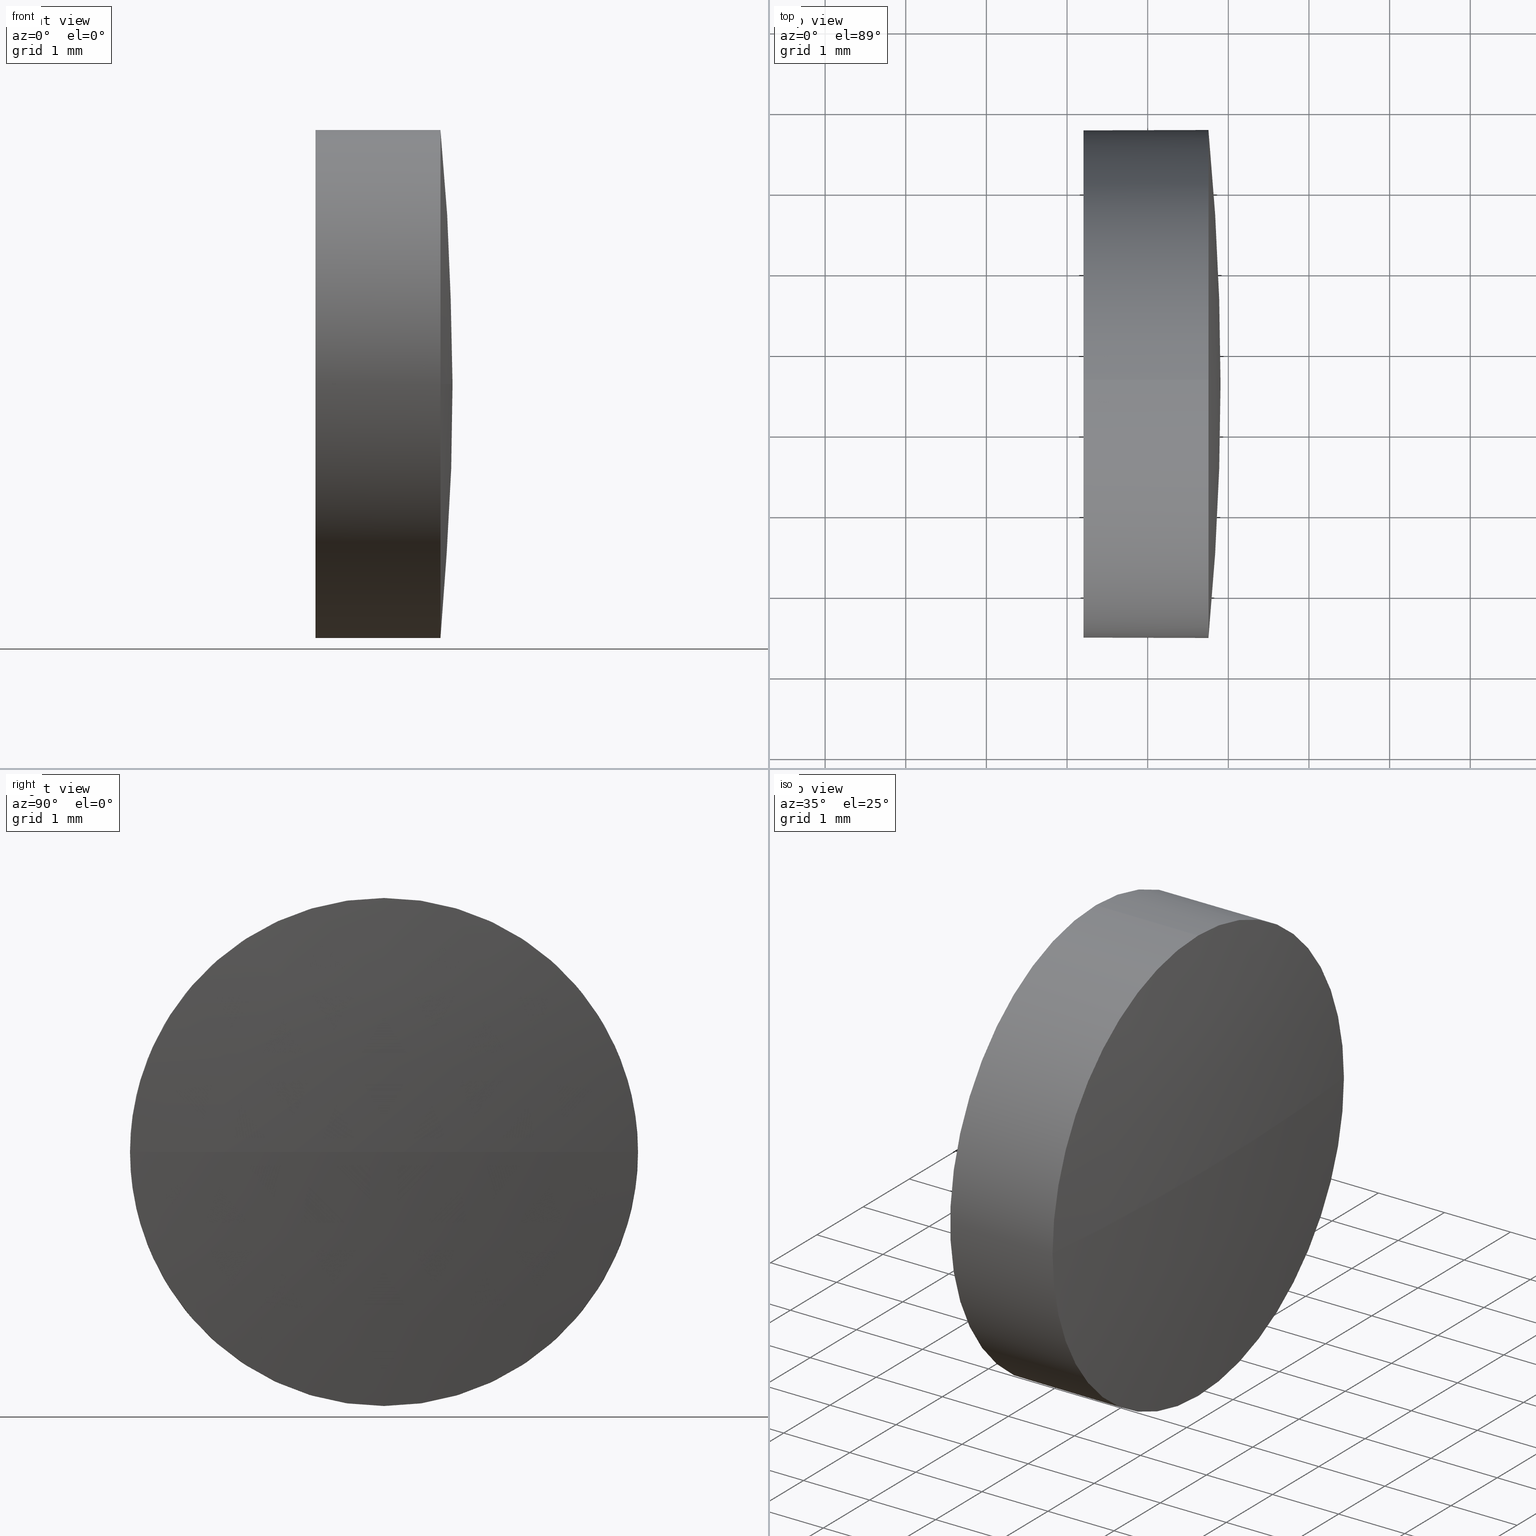
[diagram: canonical four-view strip — front | top / right | iso, engineering-drawing reading convention]
A machine part, canonical four-view strip (front | top / right | iso — engineering-drawing reading convention). The complete STEP part file that produces these views, byte-faithful:
ISO-10303-21;
HEADER;
FILE_DESCRIPTION (( 'STEP AP214' ),
    '1' );
FILE_NAME ('100185.STEP',
    '2019-05-21T05:32:03',
    ( '' ),
    ( '' ),
    'SwSTEP 2.0',
    'SolidWorks 2016',
    '' );
FILE_SCHEMA (( 'AUTOMOTIVE_DESIGN' ));
ENDSEC;

DATA;
#1 = AXIS2_PLACEMENT_3D ( 'NONE', #105, #165, #7 ) ;
#2 = DIRECTION ( 'NONE',  ( -0.0000000000000000000, 0.0000000000000000000, -1.000000000000000000 ) ) ;
#3 = LINE ( 'NONE', #32, #106 ) ;
#4 = CARTESIAN_POINT ( 'NONE',  ( 421.2035266146245400, 44.60173696061082200, -3.149999999999999900 ) ) ;
#5 = PRESENTATION_STYLE_ASSIGNMENT (( #139 ) ) ;
#6 = DIRECTION ( 'NONE',  ( 0.0000000000000000000, 0.0000000000000000000, 1.000000000000000000 ) ) ;
#7 = DIRECTION ( 'NONE',  ( 0.0000000000000000000, 1.000000000000000000, 1.224646799147353200E-016 ) ) ;
#8 = VERTEX_POINT ( 'NONE', #11 ) ;
#9 = ORIENTED_EDGE ( 'NONE', *, *, #123, .T. ) ;
#10 = EDGE_CURVE ( 'NONE', #87, #16, #42, .T. ) ;
#11 = CARTESIAN_POINT ( 'NONE',  ( 422.7535266146244900, 41.45173696061073100, -3.857637417314108000E-016 ) ) ;
#12 = DIRECTION ( 'NONE',  ( 0.0000000000000000000, 1.000000000000000000, 0.0000000000000000000 ) ) ;
#13 = MANIFOLD_SOLID_BREP ( '��ת2', #108 ) ;
#14 = FACE_OUTER_BOUND ( 'NONE', #90, .T. ) ;
#15 = VERTEX_POINT ( 'NONE', #177 ) ;
#16 = VERTEX_POINT ( 'NONE', #142 ) ;
#17 = AXIS2_PLACEMENT_3D ( 'NONE', #145, #31, #66 ) ;
#18 = DIRECTION ( 'NONE',  ( -1.000000000000000000, -0.0000000000000000000, -0.0000000000000000000 ) ) ;
#19 = FACE_OUTER_BOUND ( 'NONE', #52, .T. ) ;
#20 = ORIENTED_EDGE ( 'NONE', *, *, #140, .F. ) ;
#21 = CARTESIAN_POINT ( 'NONE',  ( 422.7535266146244900, 44.60173696061082200, 0.0000000000000000000 ) ) ;
#22 = CARTESIAN_POINT ( 'NONE',  ( 421.2035266146245400, 44.60173696061082200, 0.0000000000000000000 ) ) ;
#23 = AXIS2_PLACEMENT_3D ( 'NONE', #179, #47, #157 ) ;
#24 =( GEOMETRIC_REPRESENTATION_CONTEXT ( 3 ) GLOBAL_UNCERTAINTY_ASSIGNED_CONTEXT ( ( #45 ) ) GLOBAL_UNIT_ASSIGNED_CONTEXT ( ( #144, #35, #133 ) ) REPRESENTATION_CONTEXT ( 'NONE', 'WORKASPACE' ) );
#25 = ORIENTED_EDGE ( 'NONE', *, *, #103, .T. ) ;
#26 = ORIENTED_EDGE ( 'NONE', *, *, #10, .T. ) ;
#27 = AXIS2_PLACEMENT_3D ( 'NONE', #175, #80, #50 ) ;
#28 = CARTESIAN_POINT ( 'NONE',  ( 422.7535266146244900, 44.60173696061082200, -3.149999999999999900 ) ) ;
#29 = CIRCLE ( 'NONE', #127, 3.149999999999999900 ) ;
#30 = FILL_AREA_STYLE ('',( #81 ) ) ;
#31 = DIRECTION ( 'NONE',  ( 1.000000000000000000, 0.0000000000000000000, 0.0000000000000000000 ) ) ;
#32 = CARTESIAN_POINT ( 'NONE',  ( 420.3978162020825400, 44.60173696061082200, -3.149999999999999900 ) ) ;
#33 = VERTEX_POINT ( 'NONE', #28 ) ;
#34 = STYLED_ITEM ( 'NONE', ( #58 ), #13 ) ;
#35 =( NAMED_UNIT ( * ) PLANE_ANGLE_UNIT ( ) SI_UNIT ( $, .RADIAN. ) );
#36 = CYLINDRICAL_SURFACE ( 'NONE', #84, 3.149999999999999900 ) ;
#37 = DIRECTION ( 'NONE',  ( 1.000000000000000000, 0.0000000000000000000, 0.0000000000000000000 ) ) ;
#38 = ORIENTED_EDGE ( 'NONE', *, *, #103, .F. ) ;
#39 = AXIS2_PLACEMENT_3D ( 'NONE', #183, #43, #89 ) ;
#40 = LINE ( 'NONE', #72, #53 ) ;
#41 = FILL_AREA_STYLE_COLOUR ( '', #101 ) ;
#42 = CIRCLE ( 'NONE', #23, 3.149999999999999900 ) ;
#43 = DIRECTION ( 'NONE',  ( -1.000000000000000000, -0.0000000000000000000, -0.0000000000000000000 ) ) ;
#44 = ORIENTED_EDGE ( 'NONE', *, *, #159, .T. ) ;
#45 = UNCERTAINTY_MEASURE_WITH_UNIT (LENGTH_MEASURE( 1.000000000000000100E-005 ), #144, 'distance_accuracy_value', 'NONE');
#46 = CIRCLE ( 'NONE', #73, 3.149999999999999900 ) ;
#47 = DIRECTION ( 'NONE',  ( -1.000000000000000000, -0.0000000000000000000, -0.0000000000000000000 ) ) ;
#48 = CARTESIAN_POINT ( 'NONE',  ( 422.7535266146244900, 44.60173696061082200, 0.0000000000000000000 ) ) ;
#49 = VERTEX_POINT ( 'NONE', #129 ) ;
#50 = DIRECTION ( 'NONE',  ( 0.0000000000000000000, 1.000000000000000000, 0.0000000000000000000 ) ) ;
#51 = PRODUCT_DEFINITION_SHAPE ( 'NONE', 'NONE',  #79 ) ;
#52 = EDGE_LOOP ( 'NONE', ( #38, #76, #70, #83 ) ) ;
#53 = VECTOR ( 'NONE', #149, 1000.000000000000000 ) ;
#54 = ORIENTED_EDGE ( 'NONE', *, *, #150, .F. ) ;
#55 = DIRECTION ( 'NONE',  ( 0.0000000000000000000, 0.0000000000000000000, 1.000000000000000000 ) ) ;
#56 = DIRECTION ( 'NONE',  ( -1.000000000000000000, -0.0000000000000000000, -0.0000000000000000000 ) ) ;
#57 =( NAMED_UNIT ( * ) SI_UNIT ( $, .STERADIAN. ) SOLID_ANGLE_UNIT ( ) );
#58 = PRESENTATION_STYLE_ASSIGNMENT (( #114 ) ) ;
#59 = APPLICATION_PROTOCOL_DEFINITION ( 'draft international standard', 'automotive_design', 1998, #168 ) ;
#60 = AXIS2_PLACEMENT_3D ( 'NONE', #120, #181, #6 ) ;
#61 = PRODUCT_DEFINITION_FORMATION_WITH_SPECIFIED_SOURCE ( '�κ�', '', #99, .NOT_KNOWN. ) ;
#62 = CARTESIAN_POINT ( 'NONE',  ( 389.7535266146232400, 44.60173696061069400, 0.0000000000000000000 ) ) ;
#63 = UNCERTAINTY_MEASURE_WITH_UNIT (LENGTH_MEASURE( 1.000000000000000100E-005 ), #137, 'distance_accuracy_value', 'NONE');
#64 = CIRCLE ( 'NONE', #39, 3.149999999999999900 ) ;
#65 = DIRECTION ( 'NONE',  ( 0.0000000000000000000, 0.0000000000000000000, 1.000000000000000000 ) ) ;
#66 = DIRECTION ( 'NONE',  ( 0.0000000000000000000, 0.0000000000000000000, -1.000000000000000000 ) ) ;
#67 = ORIENTED_EDGE ( 'NONE', *, *, #143, .T. ) ;
#68 = CYLINDRICAL_SURFACE ( 'NONE', #60, 3.149999999999999900 ) ;
#69 = ADVANCED_FACE ( 'NONE', ( #19 ), #148, .T. ) ;
#70 = ORIENTED_EDGE ( 'NONE', *, *, #123, .F. ) ;
#71 = DIRECTION ( 'NONE',  ( 0.0000000000000000000, 0.0000000000000000000, 1.000000000000000000 ) ) ;
#72 = CARTESIAN_POINT ( 'NONE',  ( 420.3978162020825400, 44.60173696061082200, 3.149999999999999900 ) ) ;
#73 = AXIS2_PLACEMENT_3D ( 'NONE', #22, #56, #71 ) ;
#74 = PRODUCT_CONTEXT ( 'NONE', #168, 'mechanical' ) ;
#75 = DIRECTION ( 'NONE',  ( 0.0000000000000000000, 0.0000000000000000000, 1.000000000000000000 ) ) ;
#76 = ORIENTED_EDGE ( 'NONE', *, *, #140, .T. ) ;
#77 =( NAMED_UNIT ( * ) PLANE_ANGLE_UNIT ( ) SI_UNIT ( $, .RADIAN. ) );
#78 = ADVANCED_FACE ( 'NONE', ( #86 ), #36, .T. ) ;
#79 = PRODUCT_DEFINITION ( 'δ֪', '', #61, #166 ) ;
#80 = DIRECTION ( 'NONE',  ( -0.0000000000000000000, 0.0000000000000000000, -1.000000000000000000 ) ) ;
#81 = FILL_AREA_STYLE_COLOUR ( '', #125 ) ;
#82 = CIRCLE ( 'NONE', #110, 3.149999999999999900 ) ;
#83 = ORIENTED_EDGE ( 'NONE', *, *, #143, .F. ) ;
#84 = AXIS2_PLACEMENT_3D ( 'NONE', #178, #146, #98 ) ;
#85 = MECHANICAL_DESIGN_GEOMETRIC_PRESENTATION_REPRESENTATION (  '', ( #34 ), #24 ) ;
#86 = FACE_OUTER_BOUND ( 'NONE', #186, .T. ) ;
#87 = VERTEX_POINT ( 'NONE', #4 ) ;
#88 = CARTESIAN_POINT ( 'NONE',  ( 422.7535266146244900, 44.60173696061082200, 0.0000000000000000000 ) ) ;
#89 = DIRECTION ( 'NONE',  ( 0.0000000000000000000, 0.0000000000000000000, 1.000000000000000000 ) ) ;
#90 = EDGE_LOOP ( 'NONE', ( #20, #25, #174, #122 ) ) ;
#91 = APPLICATION_PROTOCOL_DEFINITION ( 'draft international standard', 'automotive_design', 1998, #92 ) ;
#92 = APPLICATION_CONTEXT ( 'automotive_design' ) ;
#93 = CIRCLE ( 'NONE', #1, 33.15000000000124900 ) ;
#94 = ORIENTED_EDGE ( 'NONE', *, *, #10, .F. ) ;
#95 = ADVANCED_FACE ( 'NONE', ( #14 ), #124, .T. ) ;
#96 = ORIENTED_EDGE ( 'NONE', *, *, #150, .T. ) ;
#97 = AXIS2_PLACEMENT_3D ( 'NONE', #116, #130, #37 ) ;
#98 = DIRECTION ( 'NONE',  ( 0.0000000000000000000, 0.0000000000000000000, 1.000000000000000000 ) ) ;
#99 = PRODUCT ( '100185', '100185', '', ( #74 ) ) ;
#100 = PLANE ( 'NONE',  #17 ) ;
#101 = COLOUR_RGB ( '',1.000000000000000000, 1.000000000000000000, 1.000000000000000000 ) ;
#102 = DIRECTION ( 'NONE',  ( -1.000000000000000000, -0.0000000000000000000, -0.0000000000000000000 ) ) ;
#103 = EDGE_CURVE ( 'NONE', #161, #49, #154, .T. ) ;
#104 = ORIENTED_EDGE ( 'NONE', *, *, #172, .T. ) ;
#105 = CARTESIAN_POINT ( 'NONE',  ( 389.7535266146232400, 44.60173696061069400, 0.0000000000000000000 ) ) ;
#106 = VECTOR ( 'NONE', #136, 1000.000000000000000 ) ;
#107 = CARTESIAN_POINT ( 'NONE',  ( 0.0000000000000000000, 0.0000000000000000000, 0.0000000000000000000 ) ) ;
#108 = CLOSED_SHELL ( 'NONE', ( #78, #69, #95, #126, #113 ) ) ;
#109 = DIRECTION ( 'NONE',  ( 1.000000000000000000, 0.0000000000000000000, 0.0000000000000000000 ) ) ;
#110 = AXIS2_PLACEMENT_3D ( 'NONE', #48, #102, #65 ) ;
#111 = CIRCLE ( 'NONE', #138, 3.149999999999999900 ) ;
#112 = EDGE_CURVE ( 'NONE', #8, #15, #82, .T. ) ;
#113 = ADVANCED_FACE ( 'NONE', ( #131 ), #100, .F. ) ;
#114 = SURFACE_STYLE_USAGE ( .BOTH. , #158 ) ;
#115 = FACE_OUTER_BOUND ( 'NONE', #169, .T. ) ;
#116 = CARTESIAN_POINT ( 'NONE',  ( 389.7535266146232400, 44.60173696061069400, 0.0000000000000000000 ) ) ;
#117 =( GEOMETRIC_REPRESENTATION_CONTEXT ( 3 ) GLOBAL_UNCERTAINTY_ASSIGNED_CONTEXT ( ( #63 ) ) GLOBAL_UNIT_ASSIGNED_CONTEXT ( ( #137, #151, #57 ) ) REPRESENTATION_CONTEXT ( 'NONE', 'WORKASPACE' ) );
#118 = UNCERTAINTY_MEASURE_WITH_UNIT (LENGTH_MEASURE( 1.000000000000000100E-005 ), #171, 'distance_accuracy_value', 'NONE');
#119 = ORIENTED_EDGE ( 'NONE', *, *, #172, .F. ) ;
#120 = CARTESIAN_POINT ( 'NONE',  ( 420.3978162020825400, 44.60173696061082200, 0.0000000000000000000 ) ) ;
#121 = DIRECTION ( 'NONE',  ( -1.000000000000000000, -0.0000000000000000000, -0.0000000000000000000 ) ) ;
#122 = ORIENTED_EDGE ( 'NONE', *, *, #112, .F. ) ;
#123 = EDGE_CURVE ( 'NONE', #33, #8, #29, .T. ) ;
#124 = SPHERICAL_SURFACE ( 'NONE', #27, 33.15000000000124900 ) ;
#125 = COLOUR_RGB ( '',1.000000000000000000, 1.000000000000000000, 1.000000000000000000 ) ;
#126 = ADVANCED_FACE ( 'NONE', ( #115 ), #68, .T. ) ;
#127 = AXIS2_PLACEMENT_3D ( 'NONE', #88, #18, #163 ) ;
#128 = SHAPE_DEFINITION_REPRESENTATION ( #51, #153 ) ;
#129 = CARTESIAN_POINT ( 'NONE',  ( 422.7535266146244900, 47.75173696061077800, 0.0000000000000000000 ) ) ;
#130 = DIRECTION ( 'NONE',  ( -0.0000000000000000000, 0.0000000000000000000, 1.000000000000000000 ) ) ;
#131 = FACE_OUTER_BOUND ( 'NONE', #132, .T. ) ;
#132 = EDGE_LOOP ( 'NONE', ( #44, #26 ) ) ;
#133 =( NAMED_UNIT ( * ) SI_UNIT ( $, .STERADIAN. ) SOLID_ANGLE_UNIT ( ) );
#134 = SURFACE_STYLE_FILL_AREA ( #152 ) ;
#135 = ORIENTED_EDGE ( 'NONE', *, *, #112, .T. ) ;
#136 = DIRECTION ( 'NONE',  ( -1.000000000000000000, -0.0000000000000000000, -0.0000000000000000000 ) ) ;
#137 =( LENGTH_UNIT ( ) NAMED_UNIT ( * ) SI_UNIT ( .MILLI., .METRE. ) );
#138 = AXIS2_PLACEMENT_3D ( 'NONE', #21, #121, #55 ) ;
#139 = SURFACE_STYLE_USAGE ( .BOTH. , #184 ) ;
#140 = EDGE_CURVE ( 'NONE', #161, #8, #93, .T. ) ;
#141 = ORIENTED_EDGE ( 'NONE', *, *, #182, .T. ) ;
#142 = CARTESIAN_POINT ( 'NONE',  ( 421.2035266146245400, 44.60173696061082200, 3.149999999999999900 ) ) ;
#143 = EDGE_CURVE ( 'NONE', #49, #33, #111, .T. ) ;
#144 =( LENGTH_UNIT ( ) NAMED_UNIT ( * ) SI_UNIT ( .MILLI., .METRE. ) );
#145 = CARTESIAN_POINT ( 'NONE',  ( 421.2035266146245400, 44.60173696061082200, 0.0000000000000000000 ) ) ;
#146 = DIRECTION ( 'NONE',  ( -1.000000000000000000, -0.0000000000000000000, -0.0000000000000000000 ) ) ;
#147 = STYLED_ITEM ( 'NONE', ( #5 ), #153 ) ;
#148 = SPHERICAL_SURFACE ( 'NONE', #155, 33.15000000000124900 ) ;
#149 = DIRECTION ( 'NONE',  ( -1.000000000000000000, -0.0000000000000000000, -0.0000000000000000000 ) ) ;
#150 = EDGE_CURVE ( 'NONE', #15, #16, #40, .T. ) ;
#151 =( NAMED_UNIT ( * ) PLANE_ANGLE_UNIT ( ) SI_UNIT ( $, .RADIAN. ) );
#152 = FILL_AREA_STYLE ('',( #41 ) ) ;
#153 = ADVANCED_BREP_SHAPE_REPRESENTATION ( '100185', ( #13, #180 ), #117 ) ;
#154 = CIRCLE ( 'NONE', #97, 33.15000000000123500 ) ;
#155 = AXIS2_PLACEMENT_3D ( 'NONE', #62, #2, #12 ) ;
#156 = PRESENTATION_LAYER_ASSIGNMENT (  '', '', ( #147 ) ) ;
#157 = DIRECTION ( 'NONE',  ( 0.0000000000000000000, 0.0000000000000000000, 1.000000000000000000 ) ) ;
#158 = SURFACE_SIDE_STYLE ('',( #160 ) ) ;
#159 = EDGE_CURVE ( 'NONE', #16, #87, #46, .T. ) ;
#160 = SURFACE_STYLE_FILL_AREA ( #30 ) ;
#161 = VERTEX_POINT ( 'NONE', #167 ) ;
#162 = PRODUCT_RELATED_PRODUCT_CATEGORY ( 'part', '', ( #99 ) ) ;
#163 = DIRECTION ( 'NONE',  ( 0.0000000000000000000, 0.0000000000000000000, 1.000000000000000000 ) ) ;
#164 = ORIENTED_EDGE ( 'NONE', *, *, #159, .F. ) ;
#165 = DIRECTION ( 'NONE',  ( 0.0000000000000000000, 1.224646799147353200E-016, -1.000000000000000000 ) ) ;
#166 = PRODUCT_DEFINITION_CONTEXT ( 'detailed design', #92, 'design' ) ;
#167 = CARTESIAN_POINT ( 'NONE',  ( 422.9035266146244700, 44.60173696061069400, 0.0000000000000000000 ) ) ;
#168 = APPLICATION_CONTEXT ( 'automotive_design' ) ;
#169 = EDGE_LOOP ( 'NONE', ( #119, #9, #135, #96, #94 ) ) ;
#170 = MECHANICAL_DESIGN_GEOMETRIC_PRESENTATION_REPRESENTATION (  '', ( #147 ), #176 ) ;
#171 =( LENGTH_UNIT ( ) NAMED_UNIT ( * ) SI_UNIT ( .MILLI., .METRE. ) );
#172 = EDGE_CURVE ( 'NONE', #33, #87, #3, .T. ) ;
#173 = PRESENTATION_LAYER_ASSIGNMENT (  '', '', ( #34 ) ) ;
#174 = ORIENTED_EDGE ( 'NONE', *, *, #182, .F. ) ;
#175 = CARTESIAN_POINT ( 'NONE',  ( 389.7535266146232400, 44.60173696061069400, 0.0000000000000000000 ) ) ;
#176 =( GEOMETRIC_REPRESENTATION_CONTEXT ( 3 ) GLOBAL_UNCERTAINTY_ASSIGNED_CONTEXT ( ( #118 ) ) GLOBAL_UNIT_ASSIGNED_CONTEXT ( ( #171, #77, #185 ) ) REPRESENTATION_CONTEXT ( 'NONE', 'WORKASPACE' ) );
#177 = CARTESIAN_POINT ( 'NONE',  ( 422.7535266146244900, 44.60173696061082200, 3.149999999999999900 ) ) ;
#178 = CARTESIAN_POINT ( 'NONE',  ( 420.3978162020825400, 44.60173696061082200, 0.0000000000000000000 ) ) ;
#179 = CARTESIAN_POINT ( 'NONE',  ( 421.2035266146245400, 44.60173696061082200, 0.0000000000000000000 ) ) ;
#180 = AXIS2_PLACEMENT_3D ( 'NONE', #107, #75, #109 ) ;
#181 = DIRECTION ( 'NONE',  ( -1.000000000000000000, -0.0000000000000000000, -0.0000000000000000000 ) ) ;
#182 = EDGE_CURVE ( 'NONE', #15, #49, #64, .T. ) ;
#183 = CARTESIAN_POINT ( 'NONE',  ( 422.7535266146244900, 44.60173696061082200, 0.0000000000000000000 ) ) ;
#184 = SURFACE_SIDE_STYLE ('',( #134 ) ) ;
#185 =( NAMED_UNIT ( * ) SI_UNIT ( $, .STERADIAN. ) SOLID_ANGLE_UNIT ( ) );
#186 = EDGE_LOOP ( 'NONE', ( #67, #104, #164, #54, #141 ) ) ;
ENDSEC;
END-ISO-10303-21;
